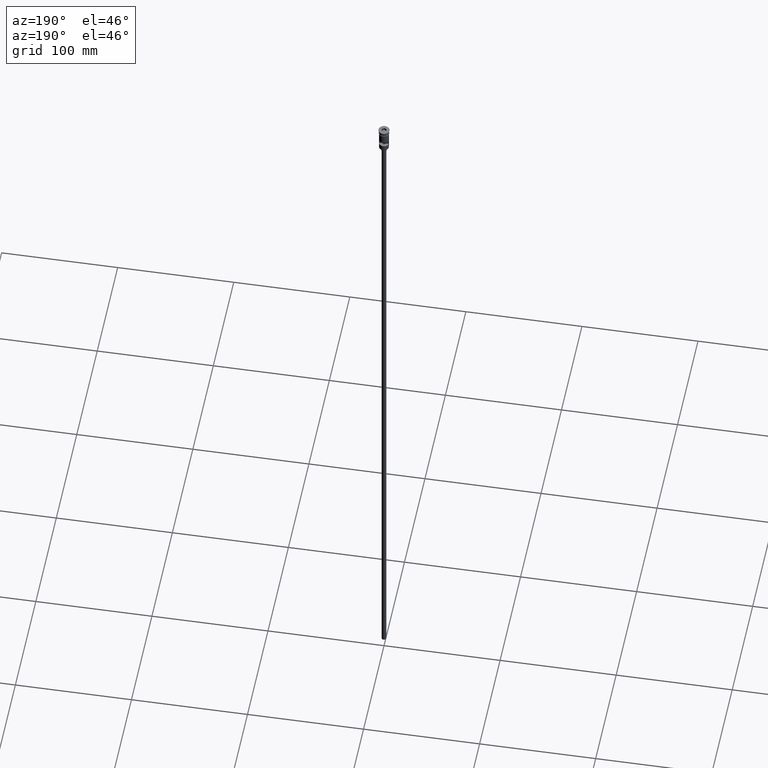
[diagram: clean part render]
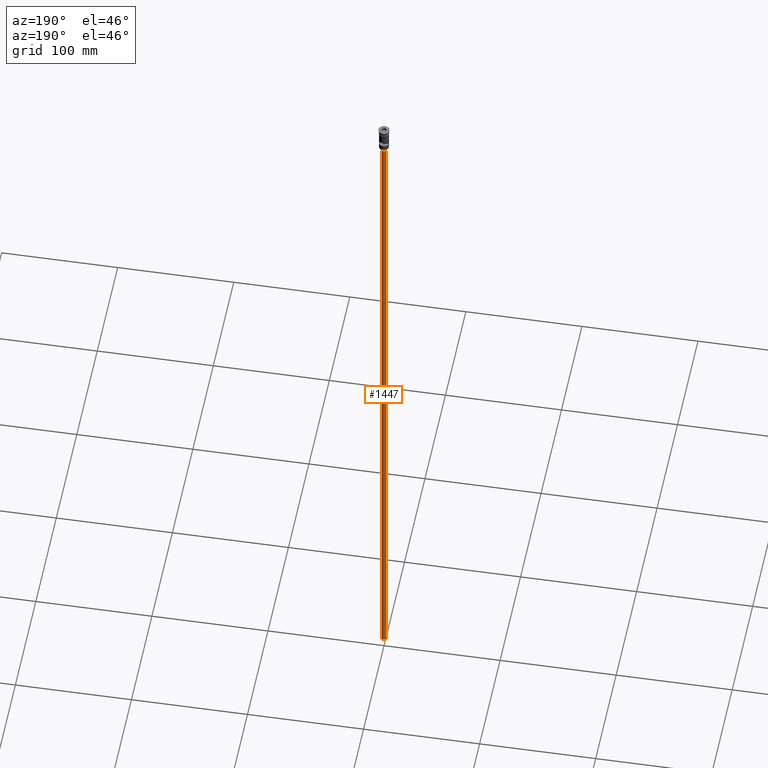
[diagram: same view with one face highlighted and labeled with its STEP entity id]
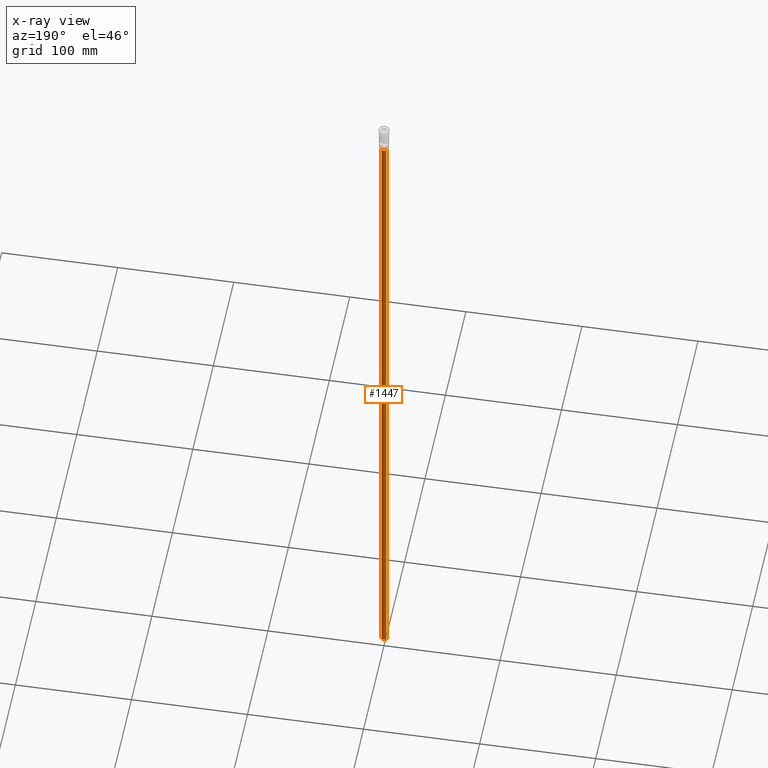
[diagram: x-ray of the same camera — body ghosted, the highlighted face saturated]
A machine part, auxiliary view. The second image highlights one B-rep face of the part: STEP entity #1447.
The next image is the same camera in x-ray: the body ghosted, the highlighted face saturated — about 0% of this face is hidden behind the body in this view.
In plain terms, the highlighted cylindrical surface (edge-blend (fillet) strip) has radius 2 mm, axis along (-0, -0, 1).
Its self-contained STEP definition (entity closure, byte-faithful):
#93 = DIRECTION ( 'NONE',  ( -0.000000000000000000, -0.000000000000000000, 1.000000000000000000 ) ) ;
#100 = FACE_OUTER_BOUND ( 'NONE', #1595, .T. ) ;
#176 = CARTESIAN_POINT ( 'NONE',  ( 2.000000000000000000, 0.000000000000000000, -620.4999999999998863 ) ) ;
#190 = CARTESIAN_POINT ( 'NONE',  ( -2.000000000000000000, 2.449293598294706414E-16, -23.49999999999999645 ) ) ;
#219 = CYLINDRICAL_SURFACE ( 'NONE', #735, 2.000000000000000000 ) ;
#235 = EDGE_CURVE ( 'NONE', #1310, #1242, #1155, .T. ) ;
#259 = EDGE_CURVE ( 'NONE', #341, #1087, #727, .T. ) ;
#341 = VERTEX_POINT ( 'NONE', #190 ) ;
#364 = EDGE_CURVE ( 'NONE', #1242, #1087, #671, .T. ) ;
#441 = CARTESIAN_POINT ( 'NONE',  ( -2.000000000000000000, 2.449293598294706414E-16, -620.4999999999998863 ) ) ;
#485 = CARTESIAN_POINT ( 'NONE',  ( 0.000000000000000000, 0.000000000000000000, -620.4999999999998863 ) ) ;
#635 = ORIENTED_EDGE ( 'NONE', *, *, #259, .T. ) ;
#671 = LINE ( 'NONE', #1540, #1240 ) ;
#727 = CIRCLE ( 'NONE', #1369, 2.000000000000000000 ) ;
#735 = AXIS2_PLACEMENT_3D ( 'NONE', #485, #93, #1080 ) ;
#784 = LINE ( 'NONE', #1151, #1422 ) ;
#791 = ORIENTED_EDGE ( 'NONE', *, *, #235, .F. ) ;
#799 = ORIENTED_EDGE ( 'NONE', *, *, #364, .F. ) ;
#829 = AXIS2_PLACEMENT_3D ( 'NONE', #1273, #1021, #1104 ) ;
#951 = ORIENTED_EDGE ( 'NONE', *, *, #1161, .T. ) ;
#1021 = DIRECTION ( 'NONE',  ( 0.000000000000000000, 0.000000000000000000, -1.000000000000000000 ) ) ;
#1080 = DIRECTION ( 'NONE',  ( 1.000000000000000000, 0.000000000000000000, 0.000000000000000000 ) ) ;
#1087 = VERTEX_POINT ( 'NONE', #1492 ) ;
#1104 = DIRECTION ( 'NONE',  ( -1.000000000000000000, 0.000000000000000000, 0.000000000000000000 ) ) ;
#1151 = CARTESIAN_POINT ( 'NONE',  ( -2.000000000000000000, 2.449293598294706414E-16, -620.4999999999998863 ) ) ;
#1155 = CIRCLE ( 'NONE', #829, 2.000000000000000000 ) ;
#1161 = EDGE_CURVE ( 'NONE', #1310, #341, #784, .T. ) ;
#1178 = DIRECTION ( 'NONE',  ( -0.000000000000000000, -0.000000000000000000, 1.000000000000000000 ) ) ;
#1240 = VECTOR ( 'NONE', #1178, 1000.000000000000000 ) ;
#1242 = VERTEX_POINT ( 'NONE', #176 ) ;
#1273 = CARTESIAN_POINT ( 'NONE',  ( 0.000000000000000000, 0.000000000000000000, -620.4999999999998863 ) ) ;
#1310 = VERTEX_POINT ( 'NONE', #441 ) ;
#1369 = AXIS2_PLACEMENT_3D ( 'NONE', #1521, #1482, #1514 ) ;
#1398 = DIRECTION ( 'NONE',  ( -0.000000000000000000, -0.000000000000000000, 1.000000000000000000 ) ) ;
#1422 = VECTOR ( 'NONE', #1398, 1000.000000000000000 ) ;
#1447 = ADVANCED_FACE ( 'NONE', ( #100 ), #219, .T. ) ;
#1482 = DIRECTION ( 'NONE',  ( 0.000000000000000000, 0.000000000000000000, -1.000000000000000000 ) ) ;
#1492 = CARTESIAN_POINT ( 'NONE',  ( 2.000000000000000000, 0.000000000000000000, -23.49999999999999645 ) ) ;
#1514 = DIRECTION ( 'NONE',  ( -1.000000000000000000, 0.000000000000000000, 0.000000000000000000 ) ) ;
#1521 = CARTESIAN_POINT ( 'NONE',  ( 0.000000000000000000, 0.000000000000000000, -23.49999999999999645 ) ) ;
#1540 = CARTESIAN_POINT ( 'NONE',  ( 2.000000000000000000, 0.000000000000000000, -620.4999999999998863 ) ) ;
#1595 = EDGE_LOOP ( 'NONE', ( #791, #951, #635, #799 ) ) ;